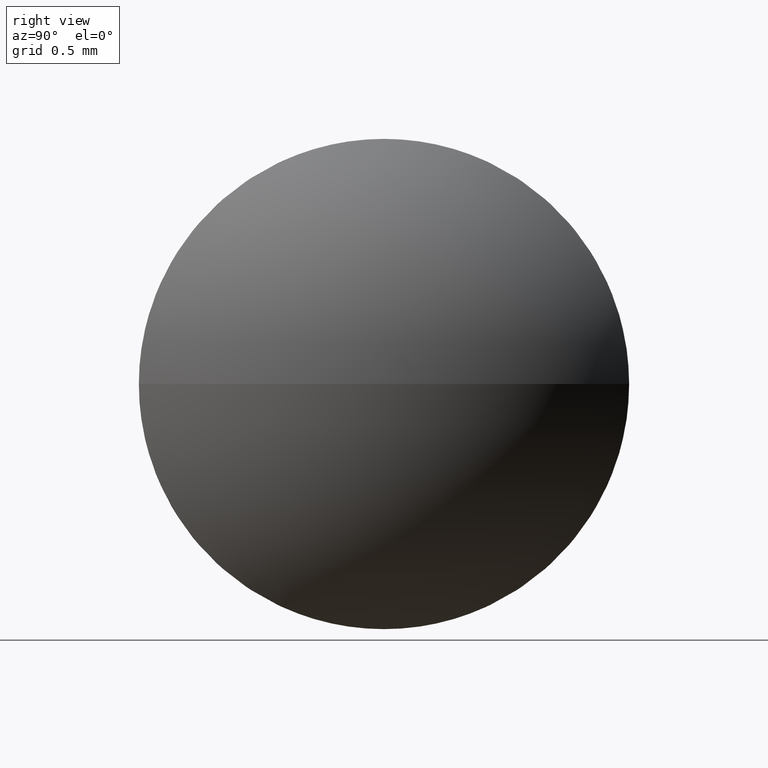
[diagram: clean part render]
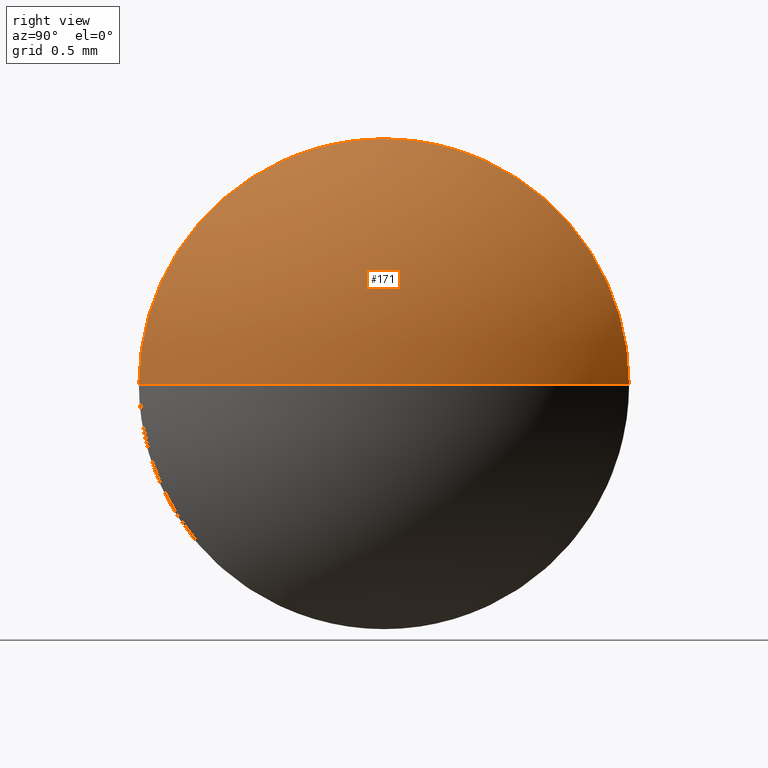
[diagram: same view with one face highlighted and labeled with its STEP entity id]
A machine part, right view. The second image highlights one B-rep face of the part: STEP entity #171.
In plain terms, the highlighted spherical surface has radius 2.5803 mm.
Its self-contained STEP definition (entity closure, byte-faithful):
#5 = ORIENTED_EDGE ( 'NONE', *, *, #51, .F. ) ;
#6 = DIRECTION ( 'NONE',  ( 0.0000000000000000000, 0.0000000000000000000, 1.000000000000000000 ) ) ;
#10 = EDGE_LOOP ( 'NONE', ( #5, #85, #35, #98 ) ) ;
#20 = CARTESIAN_POINT ( 'NONE',  ( 388.0659552680862700, 29.36813379656234700, 2.000000000000001800 ) ) ;
#21 = CARTESIAN_POINT ( 'NONE',  ( 386.4356921101915500, 29.36813379656234700, 0.0000000000000000000 ) ) ;
#24 = CARTESIAN_POINT ( 'NONE',  ( 389.0159552680863200, 29.36813379656234700, 0.0000000000000000000 ) ) ;
#33 = EDGE_CURVE ( 'NONE', #108, #128, #100, .T. ) ;
#35 = ORIENTED_EDGE ( 'NONE', *, *, #60, .F. ) ;
#46 = CIRCLE ( 'NONE', #47, 2.580263157894724400 ) ;
#47 = AXIS2_PLACEMENT_3D ( 'NONE', #21, #78, #106 ) ;
#49 = CARTESIAN_POINT ( 'NONE',  ( 386.4356921101915500, 29.36813379656234700, 0.0000000000000000000 ) ) ;
#51 = EDGE_CURVE ( 'NONE', #175, #108, #170, .T. ) ;
#54 = EDGE_CURVE ( 'NONE', #175, #143, #46, .T. ) ;
#60 = EDGE_CURVE ( 'NONE', #128, #143, #114, .T. ) ;
#62 = AXIS2_PLACEMENT_3D ( 'NONE', #154, #90, #73 ) ;
#67 = SPHERICAL_SURFACE ( 'NONE', #132, 2.580263157894725300 ) ;
#73 = DIRECTION ( 'NONE',  ( 0.0000000000000000000, 0.0000000000000000000, 1.000000000000000000 ) ) ;
#78 = DIRECTION ( 'NONE',  ( -0.0000000000000000000, 0.0000000000000000000, 1.000000000000000000 ) ) ;
#85 = ORIENTED_EDGE ( 'NONE', *, *, #54, .T. ) ;
#90 = DIRECTION ( 'NONE',  ( -1.000000000000000000, -0.0000000000000000000, -0.0000000000000000000 ) ) ;
#92 = CARTESIAN_POINT ( 'NONE',  ( 388.0659552680862700, 31.36813379656235100, 0.0000000000000000000 ) ) ;
#95 = CARTESIAN_POINT ( 'NONE',  ( 388.0659552680862700, 27.36813379656234700, -2.449293598294707900E-016 ) ) ;
#98 = ORIENTED_EDGE ( 'NONE', *, *, #33, .F. ) ;
#100 = CIRCLE ( 'NONE', #62, 2.000000000000001800 ) ;
#105 = CARTESIAN_POINT ( 'NONE',  ( 388.0659552680862700, 29.36813379656234700, 0.0000000000000000000 ) ) ;
#106 = DIRECTION ( 'NONE',  ( 1.000000000000000000, 0.0000000000000000000, 0.0000000000000000000 ) ) ;
#108 = VERTEX_POINT ( 'NONE', #95 ) ;
#114 = CIRCLE ( 'NONE', #173, 2.000000000000001800 ) ;
#119 = DIRECTION ( 'NONE',  ( 0.0000000000000000000, 1.000000000000000000, 1.224646799147353700E-016 ) ) ;
#121 = DIRECTION ( 'NONE',  ( 0.0000000000000000000, 1.224646799147353200E-016, -1.000000000000000000 ) ) ;
#126 = AXIS2_PLACEMENT_3D ( 'NONE', #49, #121, #119 ) ;
#128 = VERTEX_POINT ( 'NONE', #20 ) ;
#132 = AXIS2_PLACEMENT_3D ( 'NONE', #144, #178, #180 ) ;
#134 = FACE_OUTER_BOUND ( 'NONE', #10, .T. ) ;
#143 = VERTEX_POINT ( 'NONE', #92 ) ;
#144 = CARTESIAN_POINT ( 'NONE',  ( 386.4356921101915500, 29.36813379656234700, 0.0000000000000000000 ) ) ;
#154 = CARTESIAN_POINT ( 'NONE',  ( 388.0659552680862700, 29.36813379656234700, 0.0000000000000000000 ) ) ;
#158 = DIRECTION ( 'NONE',  ( -1.000000000000000000, -0.0000000000000000000, -0.0000000000000000000 ) ) ;
#170 = CIRCLE ( 'NONE', #126, 2.580263157894724400 ) ;
#171 = ADVANCED_FACE ( 'NONE', ( #134 ), #67, .T. ) ;
#173 = AXIS2_PLACEMENT_3D ( 'NONE', #105, #158, #6 ) ;
#175 = VERTEX_POINT ( 'NONE', #24 ) ;
#178 = DIRECTION ( 'NONE',  ( -0.0000000000000000000, 0.0000000000000000000, -1.000000000000000000 ) ) ;
#180 = DIRECTION ( 'NONE',  ( 0.0000000000000000000, 1.000000000000000000, 0.0000000000000000000 ) ) ;